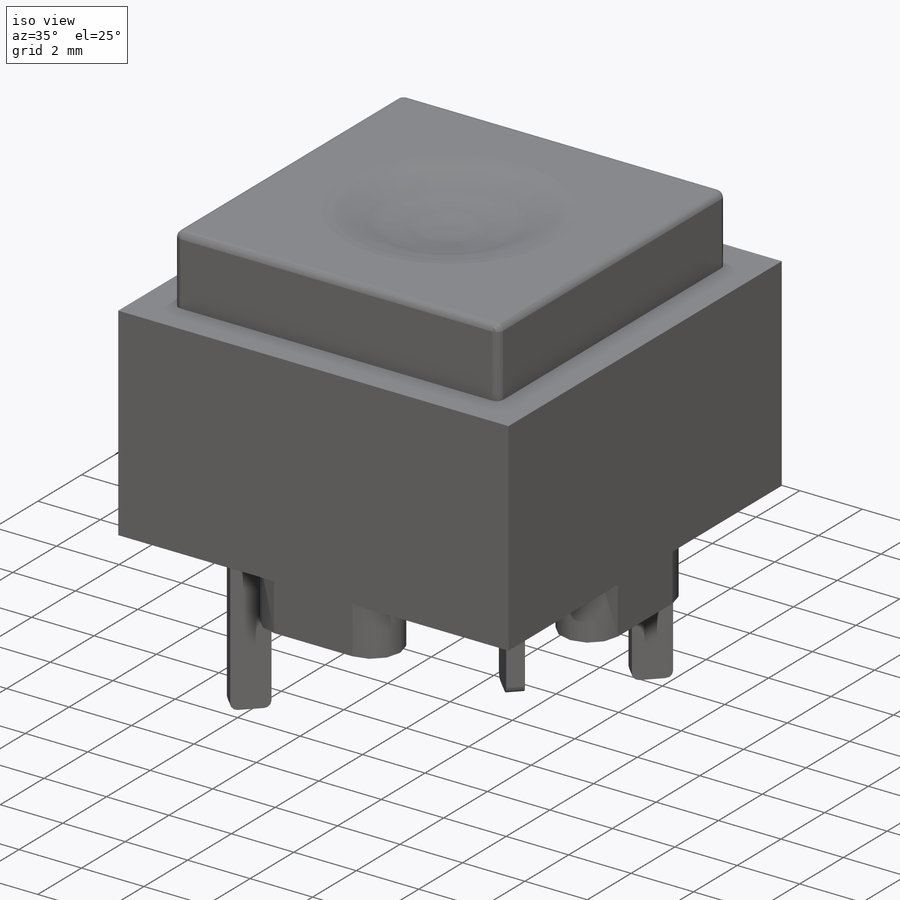
[diagram: iso view]
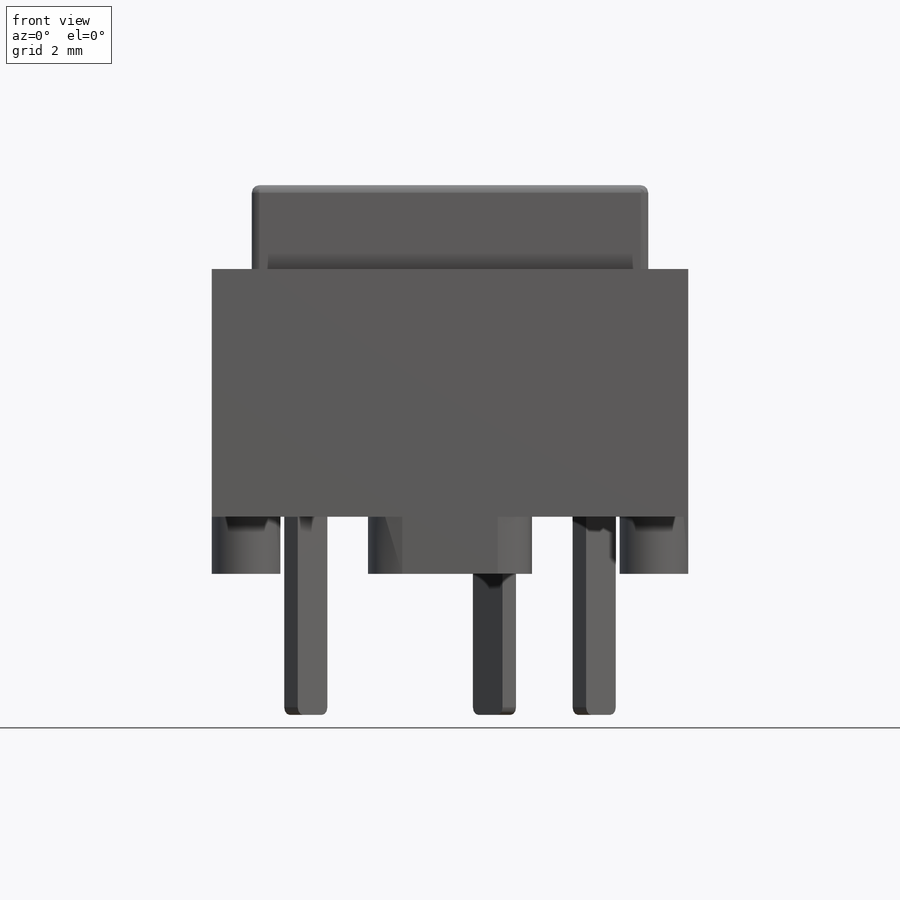
[diagram: front view]
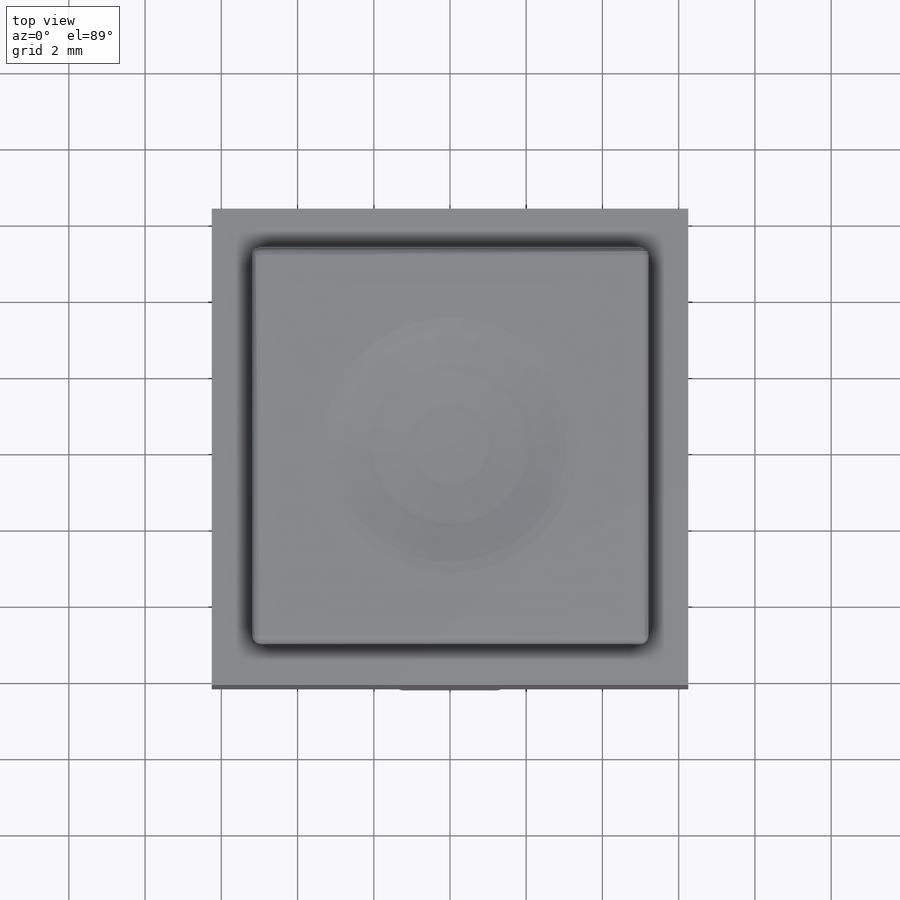
[diagram: top view]
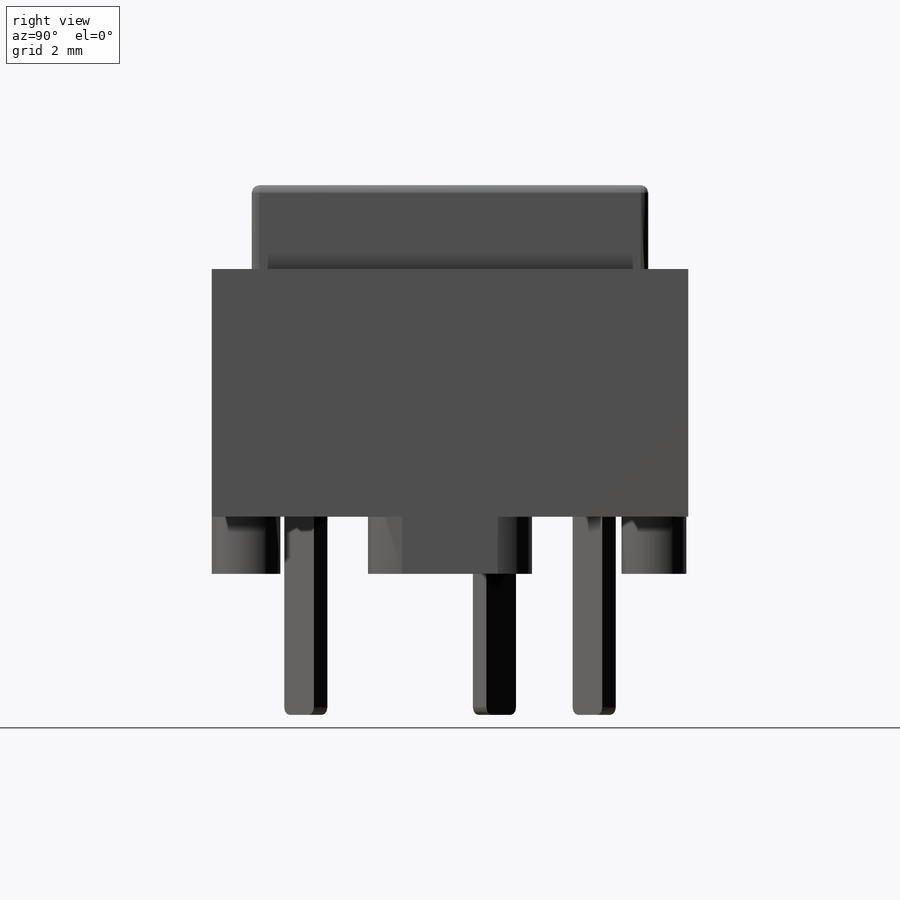
[diagram: right view]
SOLIDWORKS PART (.sldprt)
format: sldprt  version: not decoded by parser v0  size: 361,984 bytes
history: native  units: mm
features: sketch x5, fillet x5, extrude x4, plane x3, material x1, cut_revolve x1 (+8 scaffold rows collapsed)
feature tree (27):
  scaffold x8  (default folders/planes/origin — collapsed)
  material  "Материал <не указан>"
  plane  "Спереди"
  plane  "Сверху"
  plane  "Справа"
  sketch  "Эскиз1"  dims[D1=12.5mm]
  extrude  "Бобышка-Вытянуть1"  Depth=6.5mm
  sketch  "Эскиз2"  dims[D1=0.9mm D2=1.7mm D3=0.9mm]
  extrude  "Бобышка-Вытянуть2"  Depth=1.5mm
  sketch  "Эскиз5"  dims[D1=0.5mm D2=1.1mm D3=10.7mm D4=3.7mm D5=1.1mm D6=0.5mm]
  extrude  "Бобышка-Вытянуть3"  Depth=5.2mm
  fillet  "Скругление2"  Radius=0.2mm
  fillet  "Скругление3"  Radius=0.2mm
  fillet  "Скругление4"  Radius=0.2mm
  sketch  "Эскиз6"  dims[D1=10.4mm]
  extrude  "Бобышка-Вытянуть4"  Depth=2.2mm
  fillet  "Скругление5"  Radius=0.2mm
  sketch  "Эскиз7"  dims[c1.D4=10.49mm c1.D1=2.0mm c1.D2=2.0mm c1.D3=0.5mm c2.D1=3.2mm]
  cut_revolve  "Вырез-Повернуть1"  Angle=360deg
  fillet  "Скругление6"  Radius=1mm
decode coverage: 15 of 15 modeling features carry decoded parameters
note: suppression state not decoded; provenance and decode notes live in map.json
